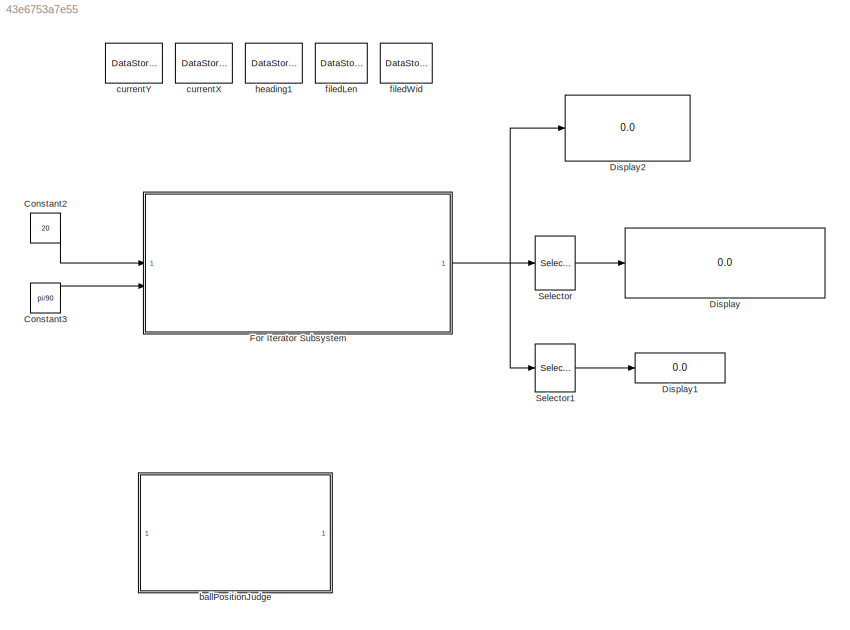
MODEL slx_43e6753a7e55
KIND model
CONFIG AbsTol = auto
CONFIG EnableMultiTasking = off
CONFIG FixedStep = 0.1
CONFIG MaxStep = auto
CONFIG MinStep = auto
CONFIG RelTol = 1e-3
CONFIG SampleTimeConstraint = Unconstrained
CONFIG SolverName = FixedStepAuto
CONFIG StartTime = 0.0
CONFIG StopTime = 111111
BLOCK [Constant] Constant2
  Value = 20
BLOCK [Constant] Constant3
  Value = pi/90
BLOCK [Display] Display
  Decimation = 1
  Format = long
BLOCK [Display] Display1
  Decimation = 1
BLOCK [Display] Display2
  Decimation = 1
  Format = long
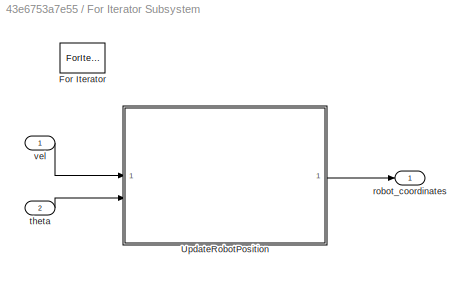
BLOCK [SubSystem] For Iterator Subsystem
  TreatAsAtomicUnit = on
BLOCK [ForIterator] For Iterator Subsystem/For Iterator
  IterationLimit = 10
  IterationVariableDataType = double
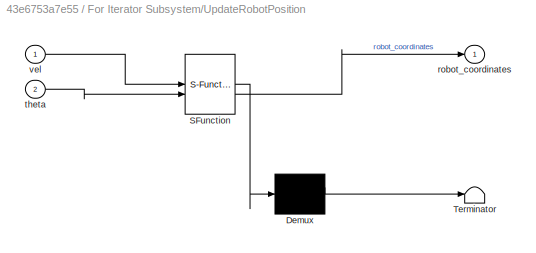
BLOCK [SubSystem] For Iterator Subsystem/UpdateRobotPosition
  ErrorFcn = Stateflow.Translate.translate
  LibrarySourceBlock = simulink/User-Defined\nFunctions/MATLAB Function
  PermitHierarchicalResolution = ExplicitOnly
  SFBlockType = MATLAB Function
  TreatAsAtomicUnit = on
BLOCK [Demux] For Iterator Subsystem/UpdateRobotPosition/ Demux 
  Outputs = 1
BLOCK [S-Function] For Iterator Subsystem/UpdateRobotPosition/ SFunction 
  EnableBusSupport = on
  FunctionName = sf_sfun
  PortCounts = [2 2]
  SFcnIsStateOwnerBlock = off
  SFunctionDeploymentMode = off
  Tag = Stateflow S-Function 5
BLOCK [Terminator] For Iterator Subsystem/UpdateRobotPosition/ Terminator 
BLOCK [Outport] For Iterator Subsystem/UpdateRobotPosition/robot_coordinates
BLOCK [Inport] For Iterator Subsystem/UpdateRobotPosition/theta
  Port = 2
BLOCK [Inport] For Iterator Subsystem/UpdateRobotPosition/vel
BLOCK [Outport] For Iterator Subsystem/robot_coordinates
BLOCK [Inport] For Iterator Subsystem/theta
  Port = 2
BLOCK [Inport] For Iterator Subsystem/vel
BLOCK [Selector] Selector
  IndexOptions = Index vector (dialog)
  Indices = [1 2]
  InputPortWidth = 3
  OutputSizes = 1
BLOCK [Selector] Selector1
  IndexOptions = Index vector (dialog)
  Indices = [3]
  InputPortWidth = 3
  OutputSizes = 1
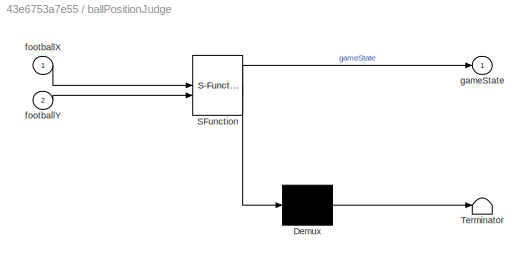
BLOCK [SubSystem] ballPositionJudge
  ErrorFcn = Stateflow.Translate.translate
  LibrarySourceBlock = simulink/User-Defined\nFunctions/MATLAB Function
  PermitHierarchicalResolution = ExplicitOnly
  SFBlockType = MATLAB Function
  TreatAsAtomicUnit = on
BLOCK [Demux] ballPositionJudge/ Demux 
  Outputs = 1
BLOCK [S-Function] ballPositionJudge/ SFunction 
  EnableBusSupport = off
  FunctionName = sf_sfun
  PortCounts = [2 2]
  SFcnIsStateOwnerBlock = off
  SFunctionDeploymentMode = off
  Tag = Stateflow S-Function 2
BLOCK [Terminator] ballPositionJudge/ Terminator 
BLOCK [Inport] ballPositionJudge/footballX
BLOCK [Inport] ballPositionJudge/footballY
  Port = 2
BLOCK [Outport] ballPositionJudge/gameState
BLOCK [DataStoreMemory] currentX
  DataStoreName = currentX
  InitialValue = 30
  OutDataTypeStr = double
  OutMax = 60
  OutMin = 0
  ShowAdditionalParam = off
  SignalType = real
  WriteAfterWriteMsg = warning
BLOCK [DataStoreMemory] currentY
  DataStoreName = currentY
  InitialValue = 20
  OutDataTypeStr = double
  OutMax = 90
  OutMin = 0
  ShowAdditionalParam = off
  SignalType = real
  WriteAfterWriteMsg = warning
BLOCK [DataStoreMemory] filedLen
  DataStoreName = filedLen
  InitialValue = 105
  ShowAdditionalParam = off
  SignalType = real
  WriteAfterWriteMsg = warning
BLOCK [DataStoreMemory] filedWid
  DataStoreName = filedWid
  InitialValue = 68
  ShowAdditionalParam = off
  SignalType = real
  WriteAfterWriteMsg = warning
BLOCK [DataStoreMemory] heading1
  DataStoreName = heading1
  InitialValue = pi
  OutDataTypeStr = double
  ShowAdditionalParam = off
  SignalType = real
  WriteAfterWriteMsg = warning
LINE Constant2:1 -> For Iterator Subsystem:1
LINE Constant3:1 -> For Iterator Subsystem:2
LINE For Iterator Subsystem/UpdateRobotPosition:1 -> For Iterator Subsystem/robot_coordinates:1
LINE For Iterator Subsystem/theta:1 -> For Iterator Subsystem/UpdateRobotPosition:2
LINE For Iterator Subsystem/vel:1 -> For Iterator Subsystem/UpdateRobotPosition:1
NET For Iterator Subsystem:1 -> Display2:1, Selector1:1, Selector:1
LINE Selector1:1 -> Display1:1
LINE Selector:1 -> Display:1
note: NET lines group one-source signal fan-out (src -> all destinations, sorted); 1:1 wires keep LINE
CHART ballPositionJudge states=1 transitions=1
  STATE_LABEL 'eML_blk_kernel()'
  STATE_LABEL 'SCRIPT:\nfunction gameState = fcn(footballX,footballY)\n    global footballX;\n    global footballY;\n    global fieldLen;\n    global fieldWid;\n    % gameState : 1->normal, 0->out of boundary, 2->scored\n%     global gameState;\n    gameState = 1;\n    \n    if (footballX <= 0 && footballY > 30.34 && footballY < 37.66)\n        % Away Team scored\n        % Away Team socre + 1\n        gameState = 2;\n       ...<+374ch>'
CHART For Iterator
Subsystem/UpdateRobotPosition states=1 transitions=1
  STATE_LABEL 'eML_blk_kernel()'
  STATE_LABEL 'SCRIPT:\nfunction robot_coordinates  = UpdateRobotPosition(vel, theta)\n    global currentX  currentY;  \n    global heading1;\n    % define sample time\n    sampleTime = 0.01;\n\n    % calculate the velocity vector of x, y\n    velX = vel * cos(heading1);\n    velY = vel * sin(heading1);\n\n    % let heading in arrange [-pi, pi]\n    heading1 = heading1 + theta;\n    if heading1 > pi\n        heading1 = headin...<+360ch>'
CHART  states=0 transitions=0
CHART  states=0 transitions=0
